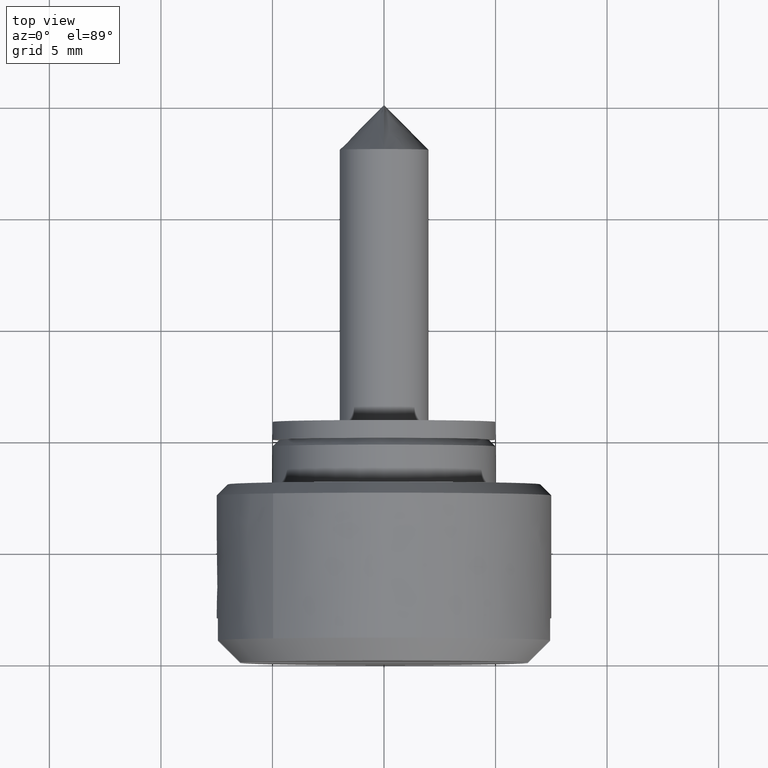
[diagram: clean part render]
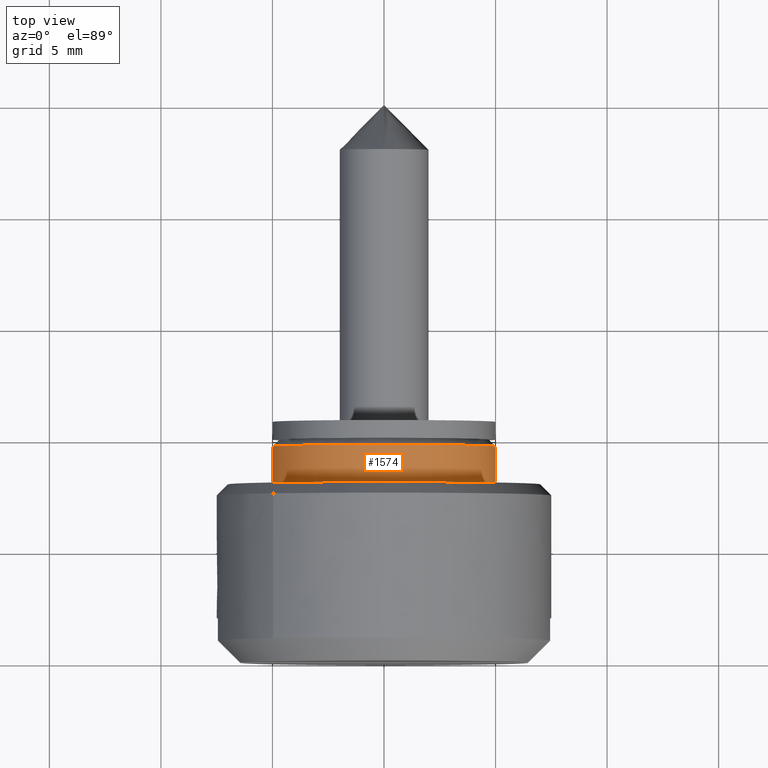
[diagram: same view with one face highlighted and labeled with its STEP entity id]
A machine part, top view. The second image highlights one B-rep face of the part: STEP entity #1574.
In plain terms, the highlighted face is a freeform B-spline surface patch.
Its self-contained STEP definition (entity closure, byte-faithful):
#1309=CARTESIAN_POINT('',(-0.300000000000000,-4.999809615320887,0.043632677492113));
#1310=VERTEX_POINT('',#1309);
#1316=CARTESIAN_POINT('',(-0.299999999999967,-4.984586924309705,-0.392292230346318));
#1317=VERTEX_POINT('',#1316);
#1318=CARTESIAN_POINT('',(-0.299999999999967,-4.984586924309705,-0.392292230346318));
#1319=CARTESIAN_POINT('',(-0.299999999999967,-4.999999999999999,-0.196448903354848));
#1320=CARTESIAN_POINT('',(-0.299999999999967,-5.0,0.0));
#1321=CARTESIAN_POINT('',(-0.299999999999967,-5.0,0.021816754103751));
#1322=CARTESIAN_POINT('',(-0.300000000000000,-4.999809615320887,0.043632677492113));
#1330=(BOUNDED_CURVE()B_SPLINE_CURVE(2,(#1318,#1319,#1320,#1321,#1322),.UNSPECIFIED.,.F.,.U.)B_SPLINE_CURVE_WITH_KNOTS((3,2,3),(0.236331412344536,0.250000000000000,0.251539894335004),.UNSPECIFIED.)CURVE()GEOMETRIC_REPRESENTATION_ITEM()RATIONAL_B_SPLINE_CURVE((0.969723589305872,0.983986253459829,1.0,0.998195901566352,0.996414028100366))REPRESENTATION_ITEM(''));
#1331=EDGE_CURVE('',#1317,#1310,#1330,.T.);
#1371=CARTESIAN_POINT('',(-0.299999999999967,4.984586924309705,0.392292230346319));
#1372=VERTEX_POINT('',#1371);
#1388=CARTESIAN_POINT('',(-0.299999999999967,0.0,5.0));
#1389=VERTEX_POINT('',#1388);
#1390=CARTESIAN_POINT('',(-0.299999999999967,0.0,5.0));
#1391=CARTESIAN_POINT('',(-0.299999999999967,4.621955479581410,4.999999999999999));
#1392=CARTESIAN_POINT('',(-0.299999999999967,4.984586924309705,0.392292230346319));
#1400=(BOUNDED_CURVE()B_SPLINE_CURVE(2,(#1390,#1391,#1392),.UNSPECIFIED.,.F.,.U.)B_SPLINE_CURVE_WITH_KNOTS((3,3),(0.500000000000000,0.736331412344536),.UNSPECIFIED.)CURVE()GEOMETRIC_REPRESENTATION_ITEM()RATIONAL_B_SPLINE_CURVE((1.0,0.723120527726719,0.969723589305872))REPRESENTATION_ITEM(''));
#1401=EDGE_CURVE('',#1389,#1372,#1400,.T.);
#1403=CARTESIAN_POINT('',(-0.300000000000000,-4.999809615320887,0.043632677492113));
#1404=CARTESIAN_POINT('',(-0.299999999999967,-4.956556052974410,5.000000000000001));
#1405=CARTESIAN_POINT('',(-0.299999999999967,0.0,5.0));
#1413=(BOUNDED_CURVE()B_SPLINE_CURVE(2,(#1403,#1404,#1405),.UNSPECIFIED.,.F.,.U.)B_SPLINE_CURVE_WITH_KNOTS((3,3),(0.251539894335004,0.500000000000000),.UNSPECIFIED.)CURVE()GEOMETRIC_REPRESENTATION_ITEM()RATIONAL_B_SPLINE_CURVE((0.996414028100366,0.708910879620196,1.0))REPRESENTATION_ITEM(''));
#1414=EDGE_CURVE('',#1310,#1389,#1413,.T.);
#1471=CARTESIAN_POINT('',(-2.000000000000050,-4.984586927430787,-0.392292190688549));
#1472=VERTEX_POINT('',#1471);
#1486=CARTESIAN_POINT('',(-2.000000000000050,4.984586927430787,0.392292190688549));
#1487=VERTEX_POINT('',#1486);
#1503=CARTESIAN_POINT('',(-2.000000000000050,4.984586927430787,0.392292190688549));
#1504=CARTESIAN_POINT('',(-0.299999999999967,4.984586924309705,0.392292230346319));
#1505=QUASI_UNIFORM_CURVE('',1,(#1503,#1504),.UNSPECIFIED.,.F.,.U.);
#1506=EDGE_CURVE('',#1487,#1372,#1505,.T.);
#1511=CARTESIAN_POINT('',(-2.000000000000050,-4.984586927430787,-0.392292190688549));
#1512=CARTESIAN_POINT('',(-0.299999999999967,-4.984586924309705,-0.392292230346318));
#1513=QUASI_UNIFORM_CURVE('',1,(#1511,#1512),.UNSPECIFIED.,.F.,.U.);
#1514=EDGE_CURVE('',#1472,#1317,#1513,.T.);
#1519=CARTESIAN_POINT('',(-2.042500000000001,4.984586668665638,0.392295478639228));
#1520=CARTESIAN_POINT('',(-2.042500000000001,4.592291190026410,5.376882147304866));
#1521=CARTESIAN_POINT('',(-2.042500000000001,-0.392295478639228,4.984586668665638));
#1522=CARTESIAN_POINT('',(-2.042500000000001,-5.376882147304866,4.592291190026410));
#1523=CARTESIAN_POINT('',(-2.042500000000001,-4.984586668665638,-0.392295478639228));
#1524=CARTESIAN_POINT('',(-0.256437499999966,4.984586668665638,0.392295478639228));
#1525=CARTESIAN_POINT('',(-0.256437499999966,4.592291190026410,5.376882147304866));
#1526=CARTESIAN_POINT('',(-0.256437499999966,-0.392295478639228,4.984586668665638));
#1527=CARTESIAN_POINT('',(-0.256437499999966,-5.376882147304866,4.592291190026410));
#1528=CARTESIAN_POINT('',(-0.256437499999966,-4.984586668665638,-0.392295478639228));
#1536=(BOUNDED_SURFACE()B_SPLINE_SURFACE(2,1,((#1519,#1524),(#1520,#1525),(#1521,#1526),(#1522,#1527),(#1523,#1528)),.UNSPECIFIED.,.F.,.F.,.U.)B_SPLINE_SURFACE_WITH_KNOTS((3,2,3),(2,2),(0.0,8.284271247461899,16.568542494923800),(0.0,1.0),.UNSPECIFIED.)GEOMETRIC_REPRESENTATION_ITEM()RATIONAL_B_SPLINE_SURFACE(((1.0,1.0),(0.707106781186548,0.707106781186548),(1.0,1.0),(0.707106781186548,0.707106781186548),(1.0,1.0)))REPRESENTATION_ITEM('')SURFACE());
#1537=CARTESIAN_POINT('',(-2.0,0.0,5.0));
#1538=VERTEX_POINT('',#1537);
#1539=CARTESIAN_POINT('',(-2.000000000000050,-4.984586927430787,-0.392292190688549));
#1540=CARTESIAN_POINT('',(-2.000000000000000,-4.999999999999999,-0.196448883433947));
#1541=CARTESIAN_POINT('',(-2.0,-5.0,0.0));
#1542=CARTESIAN_POINT('',(-2.000000000000000,-5.000000000000001,5.000000000000001));
#1543=CARTESIAN_POINT('',(-2.0,0.0,5.0));
#1551=(BOUNDED_CURVE()B_SPLINE_CURVE(2,(#1539,#1540,#1541,#1542,#1543),.UNSPECIFIED.,.F.,.U.)B_SPLINE_CURVE_WITH_KNOTS((3,2,3),(0.236331413708403,0.250000000000000,0.500000000000000),.UNSPECIFIED.)CURVE()GEOMETRIC_REPRESENTATION_ITEM()RATIONAL_B_SPLINE_CURVE((0.969723592152161,0.983986255057699,1.0,0.707106781186548,1.0))REPRESENTATION_ITEM(''));
#1552=EDGE_CURVE('',#1472,#1538,#1551,.T.);
#1553=ORIENTED_EDGE('',*,*,#1552,.F.);
#1554=ORIENTED_EDGE('',*,*,#1514,.T.);
#1555=ORIENTED_EDGE('',*,*,#1331,.T.);
#1556=ORIENTED_EDGE('',*,*,#1414,.T.);
#1557=ORIENTED_EDGE('',*,*,#1401,.T.);
#1558=ORIENTED_EDGE('',*,*,#1506,.F.);
#1559=CARTESIAN_POINT('',(-2.0,0.0,5.0));
#1560=CARTESIAN_POINT('',(-2.000000000000000,4.621955516467760,5.0));
#1561=CARTESIAN_POINT('',(-2.000000000000050,4.984586927430787,0.392292190688549));
#1569=(BOUNDED_CURVE()B_SPLINE_CURVE(2,(#1559,#1560,#1561),.UNSPECIFIED.,.F.,.U.)B_SPLINE_CURVE_WITH_KNOTS((3,3),(0.500000000000000,0.736331413708403),.UNSPECIFIED.)CURVE()GEOMETRIC_REPRESENTATION_ITEM()RATIONAL_B_SPLINE_CURVE((1.0,0.723120526128849,0.969723592152161))REPRESENTATION_ITEM(''));
#1570=EDGE_CURVE('',#1538,#1487,#1569,.T.);
#1571=ORIENTED_EDGE('',*,*,#1570,.F.);
#1572=EDGE_LOOP('',(#1553,#1554,#1555,#1556,#1557,#1558,#1571));
#1573=FACE_OUTER_BOUND('',#1572,.T.);
#1574=ADVANCED_FACE('',(#1573),#1536,.T.);